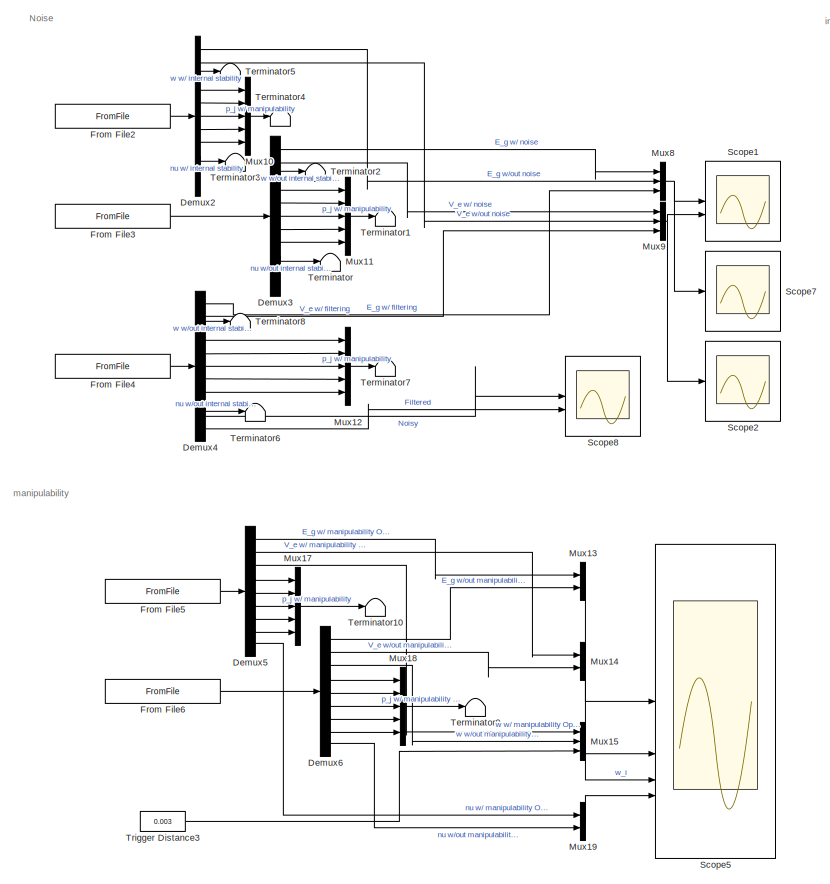
[diagram: root canvas - part 1/3, center side, full height]
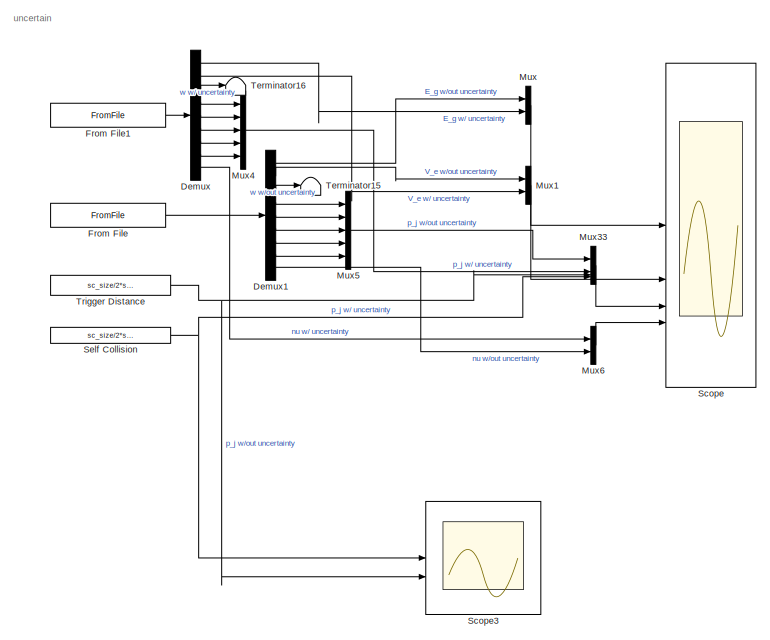
[diagram: root canvas - part 2/3, middle left region]
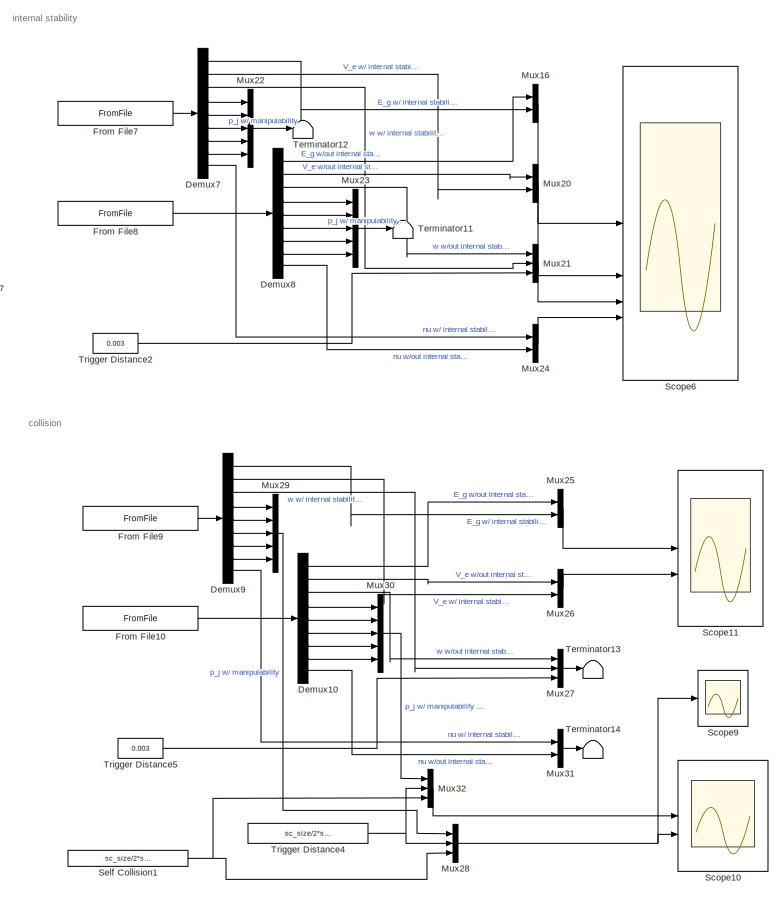
[diagram: root canvas - part 3/3, right side, full height]
MODEL slx_d29737fa9b74
KIND model
CONFIG AbsTol = auto
CONFIG EnableMultiTasking = off
CONFIG FixedStep = 0.01
CONFIG MaxStep = auto
CONFIG MinStep = auto
CONFIG RelTol = 1e-3
CONFIG SampleTimeConstraint = Unconstrained
CONFIG SolverName = FixedStepAuto
CONFIG StartTime = 0.0
CONFIG StopTime = 120
BLOCK [Demux] Demux
  Outputs = 9
BLOCK [Demux] Demux1
  Outputs = 9
BLOCK [Demux] Demux10
  Outputs = 9
BLOCK [Demux] Demux2
  Outputs = 11
BLOCK [Demux] Demux3
  Outputs = 11
BLOCK [Demux] Demux4
  Outputs = 11
BLOCK [Demux] Demux5
  Outputs = 9
BLOCK [Demux] Demux6
  Outputs = 9
BLOCK [Demux] Demux7
  Outputs = 9
BLOCK [Demux] Demux8
  Outputs = 9
BLOCK [Demux] Demux9
  Outputs = 9
BLOCK [FromFile] From File
  FileName = result_full.mat
  SampleTime = 0
BLOCK [FromFile] From File1
  FileName = result_uncertain.mat
  SampleTime = 0
BLOCK [FromFile] From File10
  FileName = result_collision.mat
  SampleTime = 0
BLOCK [FromFile] From File2
  FileName = result_nonoise1.mat
  SampleTime = 0
BLOCK [FromFile] From File3
  FileName = result_noisy1.mat
  SampleTime = 0
BLOCK [FromFile] From File4
  FileName = result_filtered3.mat
  SampleTime = 0
BLOCK [FromFile] From File5
  FileName = result_manip.mat
  SampleTime = 0
BLOCK [FromFile] From File6
  FileName = result_nomanip.mat
  SampleTime = 0
BLOCK [FromFile] From File7
  FileName = result_manip.mat
  SampleTime = 0
BLOCK [FromFile] From File8
  FileName = result_nostability.mat
  SampleTime = 0
BLOCK [FromFile] From File9
  FileName = result_full.mat
  SampleTime = 0
BLOCK [Mux] Mux
  DisplayOption = bar
  Inputs = 2
BLOCK [Mux] Mux1
  DisplayOption = bar
  Inputs = 2
BLOCK [Mux] Mux10
  DisplayOption = bar
  Inputs = 5
BLOCK [Mux] Mux11
  DisplayOption = bar
  Inputs = 5
BLOCK [Mux] Mux12
  DisplayOption = bar
  Inputs = 5
BLOCK [Mux] Mux13
  DisplayOption = bar
  Inputs = 2
BLOCK [Mux] Mux14
  DisplayOption = bar
  Inputs = 2
BLOCK [Mux] Mux15
  DisplayOption = bar
  Inputs = 3
BLOCK [Mux] Mux16
  DisplayOption = bar
  Inputs = 2
BLOCK [Mux] Mux17
  DisplayOption = bar
  Inputs = 5
BLOCK [Mux] Mux18
  DisplayOption = bar
  Inputs = 5
BLOCK [Mux] Mux19
  DisplayOption = bar
  Inputs = 2
BLOCK [Mux] Mux20
  DisplayOption = bar
  Inputs = 2
BLOCK [Mux] Mux21
  DisplayOption = bar
  Inputs = 3
BLOCK [Mux] Mux22
  DisplayOption = bar
  Inputs = 5
BLOCK [Mux] Mux23
  DisplayOption = bar
  Inputs = 5
BLOCK [Mux] Mux24
  DisplayOption = bar
  Inputs = 2
BLOCK [Mux] Mux25
  DisplayOption = bar
  Inputs = 2
BLOCK [Mux] Mux26
  DisplayOption = bar
  Inputs = 2
BLOCK [Mux] Mux27
  DisplayOption = bar
  Inputs = 3
BLOCK [Mux] Mux28
  DisplayOption = bar
  Inputs = 3
BLOCK [Mux] Mux29
  DisplayOption = bar
  Inputs = 5
BLOCK [Mux] Mux30
  DisplayOption = bar
  Inputs = 5
BLOCK [Mux] Mux31
  DisplayOption = bar
  Inputs = 2
BLOCK [Mux] Mux32
  DisplayOption = bar
  Inputs = 3
BLOCK [Mux] Mux33
  DisplayOption = bar
BLOCK [Mux] Mux4
  DisplayOption = bar
  Inputs = 5
BLOCK [Mux] Mux5
  DisplayOption = bar
  Inputs = 5
BLOCK [Mux] Mux6
  DisplayOption = bar
  Inputs = 2
BLOCK [Mux] Mux8
  DisplayOption = bar
  Inputs = 3
BLOCK [Mux] Mux9
  DisplayOption = bar
  Inputs = 3
BLOCK [Scope] Scope
  Floating = off
  NumInputPorts = 4
  ScopeSpecificationString = Simulink.scopes.TimeScopeBlockCfg('CurrentConfiguration', extmgr.ConfigurationSet(extmgr.Configuration('Core','General UI',true,'FigureColor',[1 1 1]),extmgr.Configuration('Core','Source UI',true),extmgr.Configuration('Sources','WiredSimulink',true),extmgr.Configuration('Visuals','Time Domain',true,'SerializedDisplays',{struct('MinYLimReal','-0.01184','MaxYLimReal','0.10687','YLabelReal','E_g ','M...<+6091ch>
BLOCK [Scope] Scope1
  Floating = off
  NumInputPorts = 2
  ScopeSpecificationString = Simulink.scopes.TimeScopeBlockCfg('CurrentConfiguration', extmgr.ConfigurationSet(extmgr.Configuration('Core','General UI',true,'FigureColor',[1 1 1]),extmgr.Configuration('Core','Source UI',true),extmgr.Configuration('Sources','WiredSimulink',true,'DataLoggingVariableName','ScopeData1'),extmgr.Configuration('Visuals','Time Domain',true,'SerializedDisplays',{struct('MinYLimReal','-0.01187','MaxYLi...<+2854ch>
BLOCK [Scope] Scope10
  Floating = off
  NumInputPorts = 2
  ScopeSpecificationString = Simulink.scopes.TimeScopeBlockCfg('CurrentConfiguration', extmgr.ConfigurationSet(extmgr.Configuration('Core','General UI',true,'FigureColor',[1 1 1]),extmgr.Configuration('Core','Source UI',true),extmgr.Configuration('Sources','WiredSimulink',true,'DataLoggingVariableName','ScopeData3'),extmgr.Configuration('Visuals','Time Domain',true,'SerializedDisplays',{struct('MinYLimReal','0.5','MaxYLimReal...<+4580ch>
BLOCK [Scope] Scope11
  Floating = off
  NumInputPorts = 2
  ScopeSpecificationString = Simulink.scopes.TimeScopeBlockCfg('CurrentConfiguration', extmgr.ConfigurationSet(extmgr.Configuration('Core','General UI',true,'FigureColor',[1 1 1]),extmgr.Configuration('Core','Source UI',true),extmgr.Configuration('Sources','WiredSimulink',true,'DataLoggingVariableName','ScopeData7'),extmgr.Configuration('Visuals','Time Domain',true,'SerializedDisplays',{struct('MinYLimReal','-0.01187','MaxYLi...<+2738ch>
BLOCK [Scope] Scope2
  Floating = off
  NumInputPorts = 1
  ScopeSpecificationString = Simulink.scopes.TimeScopeBlockCfg('CurrentConfiguration', extmgr.ConfigurationSet(extmgr.Configuration('Core','General UI',true,'FigureColor',[1 1 1]),extmgr.Configuration('Core','Source UI',true),extmgr.Configuration('Sources','WiredSimulink',true,'DataLoggingVariableName','ScopeData4'),extmgr.Configuration('Visuals','Time Domain',true,'SerializedDisplays',{struct('MinYLimReal','-0.00067','MaxYLi...<+1985ch>
BLOCK [Scope] Scope3
  Floating = off
  NumInputPorts = 2
  ScopeSpecificationString = Simulink.scopes.TimeScopeBlockCfg('CurrentConfiguration', extmgr.ConfigurationSet(extmgr.Configuration('Core','General UI',true,'FigureColor',[1 1 1]),extmgr.Configuration('Core','Source UI',true),extmgr.Configuration('Sources','WiredSimulink',true,'DataLoggingVariableName','ScopeData1'),extmgr.Configuration('Visuals','Time Domain',true,'SerializedDisplays',{struct('MinYLimReal','0.70086','MaxYLim...<+2271ch>
BLOCK [Scope] Scope5
  Floating = off
  NumInputPorts = 4
  ScopeSpecificationString = Simulink.scopes.TimeScopeBlockCfg('CurrentConfiguration', extmgr.ConfigurationSet(extmgr.Configuration('Core','General UI',true,'FigureColor',[1 1 1]),extmgr.Configuration('Core','Source UI',true),extmgr.Configuration('Sources','WiredSimulink',true,'DataLoggingVariableName','ScopeData1'),extmgr.Configuration('Visuals','Time Domain',true,'SerializedDisplays',{struct('MinYLimReal','-0.01187','MaxYLi...<+5394ch>
BLOCK [Scope] Scope6
  Floating = off
  NumInputPorts = 4
  ScopeSpecificationString = Simulink.scopes.TimeScopeBlockCfg('CurrentConfiguration', extmgr.ConfigurationSet(extmgr.Configuration('Core','General UI',true,'FigureColor',[1 1 1]),extmgr.Configuration('Core','Source UI',true),extmgr.Configuration('Sources','WiredSimulink',true,'DataLoggingVariableName','ScopeData2'),extmgr.Configuration('Visuals','Time Domain',true,'SerializedDisplays',{struct('MinYLimReal','-0.01187','MaxYLi...<+5466ch>
BLOCK [Scope] Scope7
  Floating = off
  NumInputPorts = 1
  ScopeSpecificationString = Simulink.scopes.TimeScopeBlockCfg('CurrentConfiguration', extmgr.ConfigurationSet(extmgr.Configuration('Core','General UI',true,'FigureColor',[1 1 1]),extmgr.Configuration('Core','Source UI',true),extmgr.Configuration('Sources','WiredSimulink',true,'DataLoggingVariableName','ScopeData5'),extmgr.Configuration('Visuals','Time Domain',true,'SerializedDisplays',{struct('MinYLimReal','-0.00006','MaxYLi...<+1985ch>
BLOCK [Scope] Scope8
  Floating = off
  NumInputPorts = 2
  ScopeSpecificationString = Simulink.scopes.TimeScopeBlockCfg('CurrentConfiguration', extmgr.ConfigurationSet(extmgr.Configuration('Core','General UI',true,'FigureColor',[1 1 1]),extmgr.Configuration('Core','Source UI',true),extmgr.Configuration('Sources','WiredSimulink',true,'DataLoggingVariableName','ScopeData8'),extmgr.Configuration('Visuals','Time Domain',true,'SerializedDisplays',{struct('MinYLimReal','-0.00002','MaxYLi...<+2086ch>
BLOCK [Scope] Scope9
  Floating = off
  NumInputPorts = 1
  ScopeSpecificationString = Simulink.scopes.TimeScopeBlockCfg('CurrentConfiguration', extmgr.ConfigurationSet(extmgr.Configuration('Core','General UI',true,'FigureColor',[1 1 1]),extmgr.Configuration('Core','Source UI',true),extmgr.Configuration('Sources','WiredSimulink',true,'DataLoggingVariableName','ScopeData6'),extmgr.Configuration('Visuals','Time Domain',true,'SerializedDisplays',{struct('MinYLimReal','0.19105','MaxYLim...<+2950ch>
BLOCK [Constant] Self Collision
  Value = sc_size/2*sqrt(2)
BLOCK [Constant] Self Collision1
  Value = sc_size/2*sqrt(2)
BLOCK [Terminator] Terminator
BLOCK [Terminator] Terminator1
BLOCK [Terminator] Terminator10
BLOCK [Terminator] Terminator11
BLOCK [Terminator] Terminator12
BLOCK [Terminator] Terminator13
BLOCK [Terminator] Terminator14
BLOCK [Terminator] Terminator15
BLOCK [Terminator] Terminator16
BLOCK [Terminator] Terminator2
BLOCK [Terminator] Terminator3
BLOCK [Terminator] Terminator4
BLOCK [Terminator] Terminator5
BLOCK [Terminator] Terminator6
BLOCK [Terminator] Terminator7
BLOCK [Terminator] Terminator8
BLOCK [Terminator] Terminator9
BLOCK [Constant] Trigger Distance
  Value = sc_size/2*sqrt(2)+0.05
BLOCK [Constant] Trigger Distance2
  Value = 0.003
BLOCK [Constant] Trigger Distance3
  Value = 0.003
BLOCK [Constant] Trigger Distance4
  Value = sc_size/2*sqrt(2)+0.05
BLOCK [Constant] Trigger Distance5
  Value = 0.003
ANNOTATION (root): Noise
ANNOTATION (root): collision
ANNOTATION (root): internal stability
ANNOTATION (root): manipulability
ANNOTATION (root): uncertain
LINE Demux10:1 -> Mux25:1
LINE Demux10:2 -> Mux26:1
LINE Demux10:3 -> Mux27:1
LINE Demux10:4 -> Mux30:1
LINE Demux10:5 -> Mux30:2
LINE Demux10:6 -> Mux30:3
LINE Demux10:7 -> Mux30:4
LINE Demux10:8 -> Mux30:5
LINE Demux10:9 -> Mux31:2
LINE Demux1:1 -> Mux:1
LINE Demux1:2 -> Mux1:1
LINE Demux1:3 -> Terminator15:1
LINE Demux1:4 -> Mux5:1
LINE Demux1:5 -> Mux5:2
LINE Demux1:6 -> Mux5:3
LINE Demux1:7 -> Mux5:4
LINE Demux1:8 -> Mux5:5
LINE Demux1:9 -> Mux6:2
LINE Demux2:1 -> Mux8:2
LINE Demux2:2 -> Mux9:2
LINE Demux2:3 -> Terminator5:1
LINE Demux2:4 -> Mux10:1
LINE Demux2:5 -> Mux10:2
LINE Demux2:6 -> Mux10:3
LINE Demux2:7 -> Mux10:4
LINE Demux2:8 -> Mux10:5
LINE Demux2:9 -> Terminator3:1
LINE Demux3:1 -> Mux8:1
LINE Demux3:2 -> Mux9:1
LINE Demux3:3 -> Terminator2:1
LINE Demux3:4 -> Mux11:1
LINE Demux3:5 -> Mux11:2
LINE Demux3:6 -> Mux11:3
LINE Demux3:7 -> Mux11:4
LINE Demux3:8 -> Mux11:5
LINE Demux3:9 -> Terminator:1
LINE Demux4:1 -> Mux8:3
LINE Demux4:10 -> Scope8:1
LINE Demux4:11 -> Scope8:2
LINE Demux4:2 -> Mux9:3
LINE Demux4:3 -> Terminator8:1
LINE Demux4:4 -> Mux12:1
LINE Demux4:5 -> Mux12:2
LINE Demux4:6 -> Mux12:3
LINE Demux4:7 -> Mux12:4
LINE Demux4:8 -> Mux12:5
LINE Demux4:9 -> Terminator6:1
LINE Demux5:1 -> Mux13:1
LINE Demux5:2 -> Mux14:1
LINE Demux5:3 -> Mux15:1
LINE Demux5:4 -> Mux17:1
LINE Demux5:5 -> Mux17:2
LINE Demux5:6 -> Mux17:3
LINE Demux5:7 -> Mux17:4
LINE Demux5:8 -> Mux17:5
LINE Demux5:9 -> Mux19:1
LINE Demux6:1 -> Mux13:2
LINE Demux6:2 -> Mux14:2
LINE Demux6:3 -> Mux15:2
LINE Demux6:4 -> Mux18:1
LINE Demux6:5 -> Mux18:2
LINE Demux6:6 -> Mux18:3
LINE Demux6:7 -> Mux18:4
LINE Demux6:8 -> Mux18:5
LINE Demux6:9 -> Mux19:2
LINE Demux7:1 -> Mux16:2
LINE Demux7:2 -> Mux20:2
LINE Demux7:3 -> Mux21:2
LINE Demux7:4 -> Mux22:1
LINE Demux7:5 -> Mux22:2
LINE Demux7:6 -> Mux22:3
LINE Demux7:7 -> Mux22:4
LINE Demux7:8 -> Mux22:5
LINE Demux7:9 -> Mux24:1
LINE Demux8:1 -> Mux16:1
LINE Demux8:2 -> Mux20:1
LINE Demux8:3 -> Mux21:1
LINE Demux8:4 -> Mux23:1
LINE Demux8:5 -> Mux23:2
LINE Demux8:6 -> Mux23:3
LINE Demux8:7 -> Mux23:4
LINE Demux8:8 -> Mux23:5
LINE Demux8:9 -> Mux24:2
LINE Demux9:1 -> Mux25:2
LINE Demux9:2 -> Mux26:2
LINE Demux9:3 -> Mux27:2
LINE Demux9:4 -> Mux29:1
LINE Demux9:5 -> Mux29:2
LINE Demux9:6 -> Mux29:3
LINE Demux9:7 -> Mux29:4
LINE Demux9:8 -> Mux29:5
LINE Demux9:9 -> Mux31:1
LINE Demux:1 -> Mux:2
LINE Demux:2 -> Mux1:2
LINE Demux:3 -> Terminator16:1
LINE Demux:4 -> Mux4:1
LINE Demux:5 -> Mux4:2
LINE Demux:6 -> Mux4:3
LINE Demux:7 -> Mux4:4
LINE Demux:8 -> Mux4:5
LINE Demux:9 -> Mux6:1
LINE From File10:1 -> Demux10:1
LINE From File1:1 -> Demux:1
LINE From File2:1 -> Demux2:1
LINE From File3:1 -> Demux3:1
LINE From File4:1 -> Demux4:1
LINE From File5:1 -> Demux5:1
LINE From File6:1 -> Demux6:1
LINE From File7:1 -> Demux7:1
LINE From File8:1 -> Demux8:1
LINE From File9:1 -> Demux9:1
LINE From File:1 -> Demux1:1
LINE Mux10:1 -> Terminator4:1
LINE Mux11:1 -> Terminator1:1
LINE Mux12:1 -> Terminator7:1
LINE Mux13:1 -> Scope5:1
LINE Mux14:1 -> Scope5:2
LINE Mux15:1 -> Scope5:3
LINE Mux16:1 -> Scope6:1
LINE Mux17:1 -> Terminator10:1
LINE Mux18:1 -> Terminator9:1
LINE Mux19:1 -> Scope5:4
LINE Mux1:1 -> Scope:2
LINE Mux20:1 -> Scope6:2
LINE Mux21:1 -> Scope6:3
LINE Mux22:1 -> Terminator12:1
LINE Mux23:1 -> Terminator11:1
LINE Mux24:1 -> Scope6:4
LINE Mux25:1 -> Scope11:1
LINE Mux26:1 -> Scope11:2
LINE Mux27:1 -> Terminator13:1
NET Mux28:1 -> Scope10:2, Scope9:1
LINE Mux29:1 -> Mux28:1
LINE Mux30:1 -> Mux32:1
LINE Mux31:1 -> Terminator14:1
LINE Mux32:1 -> Scope10:1
LINE Mux33:1 -> Scope:3
LINE Mux4:1 -> Mux33:2
LINE Mux5:1 -> Mux33:1
LINE Mux6:1 -> Scope:4
NET Mux8:1 -> Scope1:1, Scope7:1
NET Mux9:1 -> Scope1:2, Scope2:1
LINE Mux:1 -> Scope:1
NET Self Collision1:1 -> Mux28:3, Mux32:3
NET Self Collision:1 -> Mux33:4, Scope3:1
LINE Trigger Distance2:1 -> Mux21:3
LINE Trigger Distance3:1 -> Mux15:3
NET Trigger Distance4:1 -> Mux28:2, Mux32:2
LINE Trigger Distance5:1 -> Mux27:3
NET Trigger Distance:1 -> Mux33:3, Scope3:2
note: NET lines group one-source signal fan-out (src -> all destinations, sorted); 1:1 wires keep LINE
